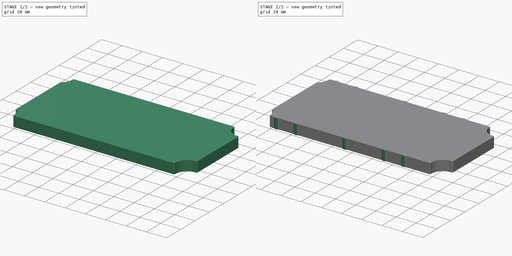
[diagram: build sequence overview — one tinted view per stage of 2, left to right]
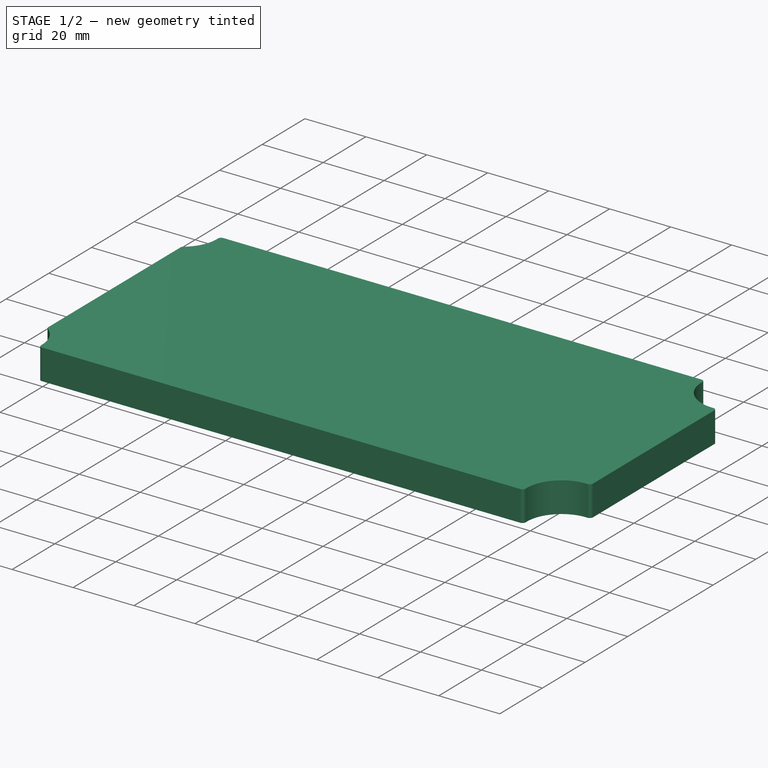
[diagram: stage 1 of 2 — iso view after this stage's code; geometry added in this stage tinted green]
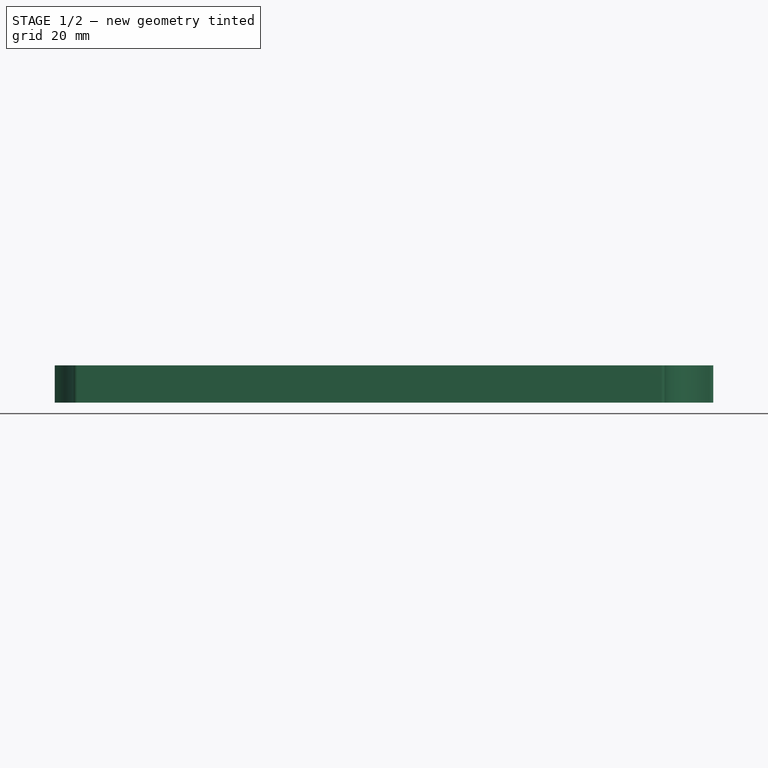
[diagram: stage 1 of 2 — front view after this stage's code; geometry added in this stage tinted green]
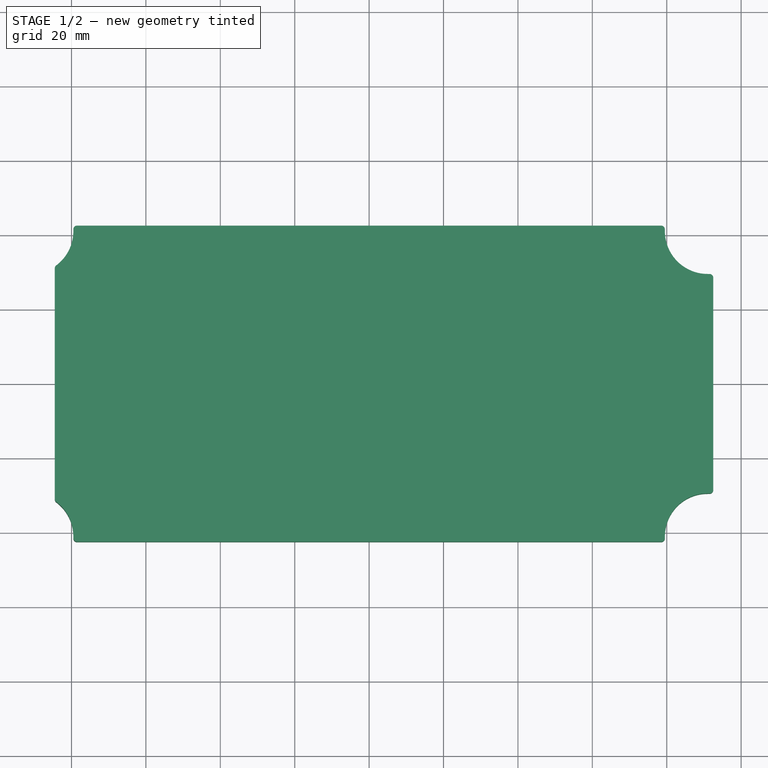
[diagram: stage 1 of 2 — top view after this stage's code; geometry added in this stage tinted green]
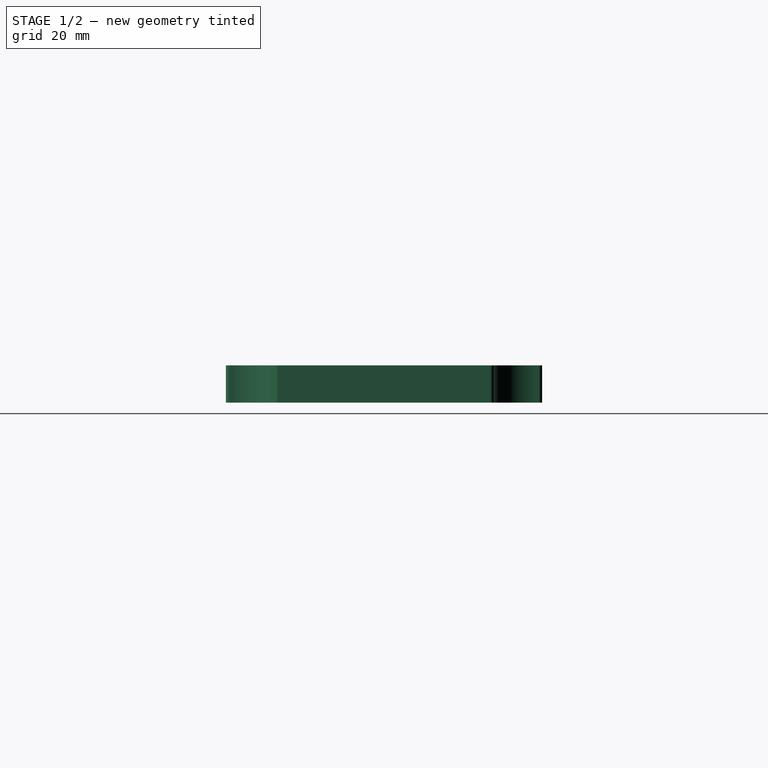
[diagram: stage 1 of 2 — right view after this stage's code; geometry added in this stage tinted green]
FCSTD DOCUMENT  (FreeCAD 1.0R39319 (Git))
Label: solar-battery-boarder
License: All rights reserved
LicenseURL: https://en.wikipedia.org/wiki/All_rights_reserved
objects: Sketcher::SketchObject×2, PartDesign::Pad×2, PartDesign::Fillet×2, PartDesign::Body×2, App::Part×2, Part::Part2DObjectPython×1
note: 19 computed .brp shape members not serialized (recipe doc carries the construction recipe); baked Part::Feature solids carry a one-line shape summary decoded from their .brp

FEATURE [PartDesign::Body] Body
  AllowCompound = false
  Group = -> [Sketch,Pad,Fillet]
  Origin = -> Origin001
  Tip = -> Fillet
FEATURE [App::Part] Part
  Group = -> [Body]
  Origin = -> Origin
FEATURE [Part::Part2DObjectPython] Shape2DView  # Draft 2D object (typed FeaturePython)
  AutoUpdate = true
  Base = -> Fillet
  Clip = false
  FaceNumbers = [4]
  FuseArch = false
  HiddenLines = false
  InPlace = true
  OnlySolids = false
  Projection = (0,0,1)
  ProjectionMode = 0
  SegmentLength = 0.05
  Tessellation = false
  VisibleOnly = false
FEATURE [Sketcher::SketchObject] Sketch001
  ArcFitTolerance = 1e-06
  AttachmentSupport = -> [XY_Plane003]
  FullyConstrained = true
  MakeInternals = false
  MapMode = 5
  sketch-geometry (28):
    g0: LineSegment [constr] StartX=-94.5 StartY=29.5 StartZ=0 EndX=-91 EndY=29.5 EndZ=0
    g1: LineSegment [constr] StartX=-79.5 StartY=44.5 StartZ=0 EndX=-79.5 EndY=41 EndZ=0
    g2: ArcOfCircle [constr] CenterX=-91 CenterY=41 CenterZ=0 NormalX=0 NormalY=0 NormalZ=1 AngleXU=0 Radius=11.5 StartAngle=4.71239 EndAngle=6.28319
    g3: LineSegment [constr] StartX=94.5 StartY=29.5 StartZ=0 EndX=91 EndY=29.5 EndZ=0
    g4: LineSegment [constr] StartX=79.5 StartY=44.5 StartZ=0 EndX=79.5 EndY=41 EndZ=0
    g5: ArcOfCircle CenterX=91 CenterY=41 CenterZ=0 NormalX=0 NormalY=0 NormalZ=1 AngleXU=0 Radius=11.5 StartAngle=3.14159 EndAngle=4.71239
    g6: LineSegment [constr] StartX=-94.5 StartY=-29.5 StartZ=0 EndX=-91 EndY=-29.5 EndZ=0
    g7: LineSegment [constr] StartX=-79.5 StartY=-44.5 StartZ=0 EndX=-79.5 EndY=-41 EndZ=0
    g8: ArcOfCircle [constr] CenterX=-91 CenterY=-41 CenterZ=0 NormalX=0 NormalY=0 NormalZ=1 AngleXU=0 Radius=11.5 StartAngle=2e-16 EndAngle=1.5708
    g9: LineSegment [constr] StartX=94.5 StartY=-29.5 StartZ=0 EndX=91 EndY=-29.5 EndZ=0
    g10: LineSegment [constr] StartX=79.5 StartY=-44.5 StartZ=0 EndX=79.5 EndY=-41 EndZ=0
    g11: ArcOfCircle CenterX=91 CenterY=-41 CenterZ=0 NormalX=0 NormalY=0 NormalZ=1 AngleXU=0 Radius=11.5 StartAngle=1.5708 EndAngle=3.14159
    g12: LineSegment [constr] StartX=-94.5 StartY=-29.5 StartZ=0 EndX=-94.5 EndY=29.5 EndZ=0
    g13: LineSegment [constr] StartX=94.5 StartY=29.5 StartZ=0 EndX=94.5 EndY=-29.5 EndZ=0
    g14: LineSegment [constr] StartX=-79.5 StartY=-44.5 StartZ=0 EndX=79.5 EndY=-44.5 EndZ=0
    g15: LineSegment [constr] StartX=-79.5 StartY=44.5 StartZ=0 EndX=79.5 EndY=44.5 EndZ=0
    g16: LineSegment StartX=79.5 StartY=-42.5 StartZ=0 EndX=-79.5 EndY=-42.5 EndZ=0
    g17: LineSegment StartX=-84.5 StartY=31.5132 StartZ=0 EndX=-84.5 EndY=-31.5132 EndZ=0
    g18: LineSegment StartX=-79.5 StartY=42.5 StartZ=0 EndX=79.5 EndY=42.5 EndZ=0
    g19: LineSegment StartX=92.5 StartY=29.5 StartZ=0 EndX=92.5 EndY=-29.5 EndZ=0
    g20: ArcOfCircle CenterX=-91 CenterY=41 CenterZ=0 NormalX=0 NormalY=0 NormalZ=1 AngleXU=0 Radius=11.5 StartAngle=5.31309 EndAngle=6.28319
    g21: LineSegment StartX=-79.5 StartY=41 StartZ=0 EndX=-79.5 EndY=42.5 EndZ=0
    g22: LineSegment StartX=91 StartY=29.5 StartZ=0 EndX=92.5 EndY=29.5 EndZ=0
    g23: LineSegment StartX=79.5 StartY=42.5 StartZ=0 EndX=79.5 EndY=41 EndZ=0
    g24: LineSegment StartX=91 StartY=-29.5 StartZ=0 EndX=92.5 EndY=-29.5 EndZ=0
    g25: LineSegment StartX=79.5 StartY=-41 StartZ=0 EndX=79.5 EndY=-42.5 EndZ=0
    g26: LineSegment StartX=-79.5 StartY=-41 StartZ=0 EndX=-79.5 EndY=-42.5 EndZ=0
    g27: ArcOfCircle CenterX=-91 CenterY=-41 CenterZ=0 NormalX=0 NormalY=0 NormalZ=1 AngleXU=0 Radius=11.5 StartAngle=0 EndAngle=0.9701
  constraints (73):
    c: Horizontal(g0)
    c: Vertical(g1)
    c: Equal(g1,g0)
    c: Tangent(g2,g1) = 1.5708
    c: DistanceY(g-1,g2) = 41
    c: Radius(g2) = 11.5
    c: DistanceX(g0,g0) = 3.5
    c: Tangent(g2,g0) = -1.5708
    c: Horizontal(g3)
    c: Vertical(g4)
    c: Equal(g4,g3)
    c: Tangent(g5,g4) = -1.5708
    c: Radius(g5) = 11.5
    c: Tangent(g5,g3) = 1.5708
    c: DistanceX(g2,g5) = 182
    c: Symmetric(g2,g5,g-2)
    c: Horizontal(g6)
    c: Vertical(g7)
    c: Equal(g7,g6)
    c: Tangent(g8,g7) = -1.5708
    c: Radius(g8) = 11.5
    c: Tangent(g8,g6) = 1.5708
    c: Horizontal(g9)
    c: Vertical(g10)
    c: Equal(g10,g9)
    c: Tangent(g11,g10) = 1.5708
    c: Radius(g11) = 11.5
    c: Tangent(g11,g9) = -1.5708
    c: Coincident(g12,g6)
    c: Coincident(g12,g0)
    c: Vertical(g12)
    c: Coincident(g13,g3)
    c: Coincident(g13,g9)
    c: Vertical(g13)
    c: Coincident(g14,g7)
    c: Coincident(g14,g10)
    c: Horizontal(g14)
    c: Coincident(g15,g1)
    c: Coincident(g15,g4)
    c: Horizontal(g15)
    c: Symmetric(g8,g2,g-1)
    c: Vertical(g11,g5)
    c: PointOnObject(g16,g10)
    c: Horizontal(g16)
    c: PointOnObject(g16,g7)
    c: PointOnObject(g17,g2)
    c: Vertical(g17)
    c: PointOnObject(g18,g4)
    c: Horizontal(g18)
    c: PointOnObject(g19,g3)
    c: PointOnObject(g19,g9)
    c: Vertical(g19)
    c: Coincident(g21,g18)
    c: Coincident(g24,g9)
    c: Coincident(g24,g19)
    c: Coincident(g26,g7)
    c: Coincident(g26,g16)
    c: Symmetric(g16,g18,g-1)
    c: Coincident(g23,g18)
    c: DistanceY(g16,g18) = 85
    c: DistanceX(g17,g-1) = 84.5
    c: Coincident(g25,g16)
    c: DistanceX(g-1,g19) = 92.5
    c: Coincident(g23,g4)
    c: Coincident(g22,g19)
    c: Coincident(g25,g10)
    c: Coincident(g22,g3)
    c: Coincident(g20,g17)
    c: Tangent(g21,g20) = -1.5708
    c: Coincident(g20,g1)
    c: Coincident(g27,g17)
    c: Coincident(g8,g27)
    c: Coincident(g27,g7)
FEATURE [PartDesign::Pad] Pad001
  Direction = (0,0,1)
  Length = 10
  Length2 = 10
  Profile = -> Sketch001
  ReferenceAxis = -> Sketch001 [N_Axis]
  Refine = true
  Suppressed = false
  Type = 0
FEATURE [PartDesign::Fillet] Fillet001
  Base = -> Pad001 [Edge38,Edge32,Edge29,Edge20,Edge1,Edge5,Edge8,Edge17]
  BaseFeature = -> Pad001
  Radius = 1
  Refine = true
  SupportTransform = false
  Suppressed = false
  UseAllEdges = false
FEATURE [PartDesign::Body] Body001
  AllowCompound = false
  Group = -> [Sketch001,Pad001,Fillet001]
  Origin = -> Origin003
  Tip = -> Fillet001
FEATURE [App::Part] Part001  label="pcb"
  Group = -> [Body001]
  Origin = -> Origin002
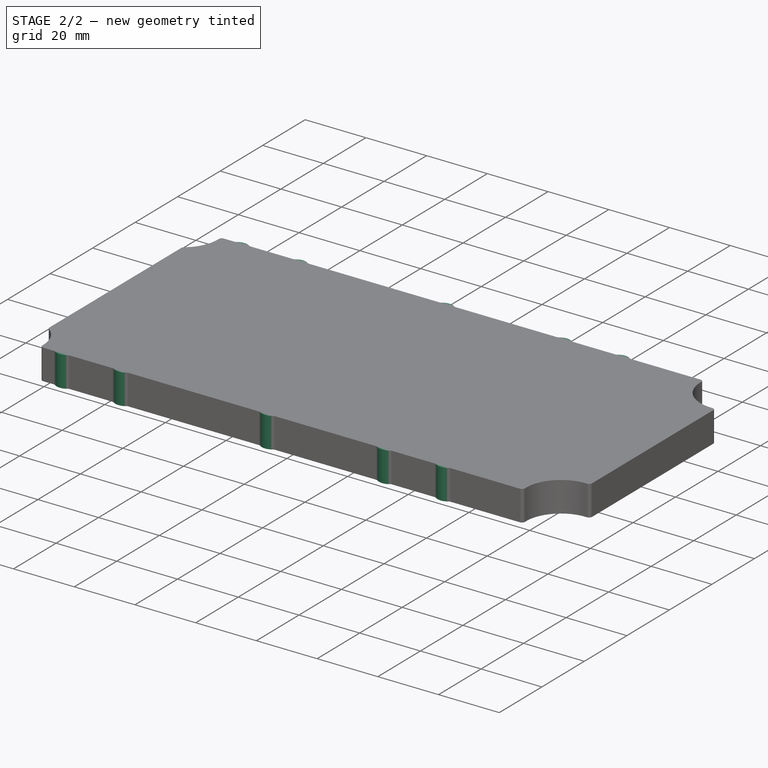
[diagram: stage 2 of 2 — iso view after this stage's code; geometry added in this stage tinted green]
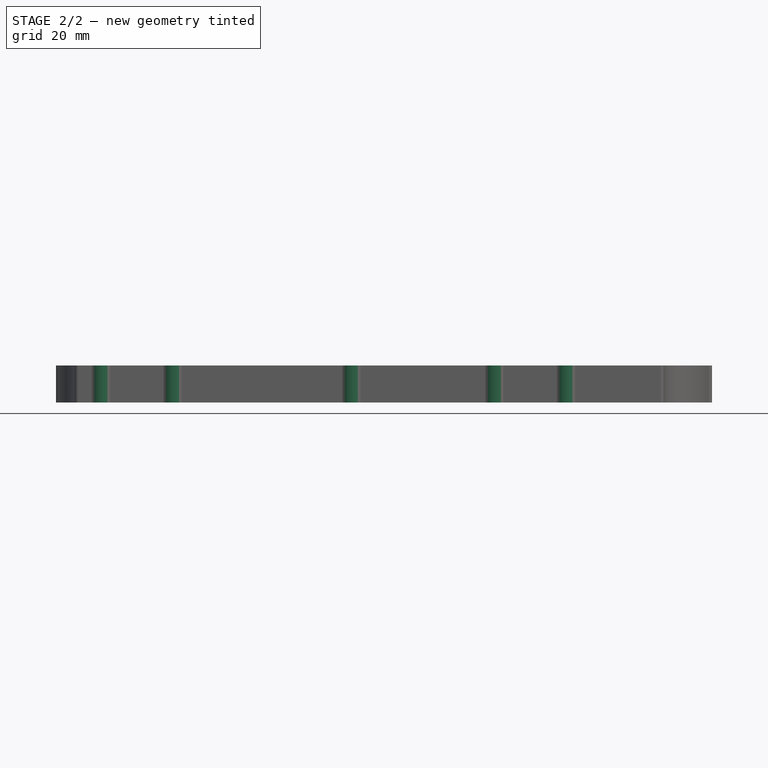
[diagram: stage 2 of 2 — front view after this stage's code; geometry added in this stage tinted green]
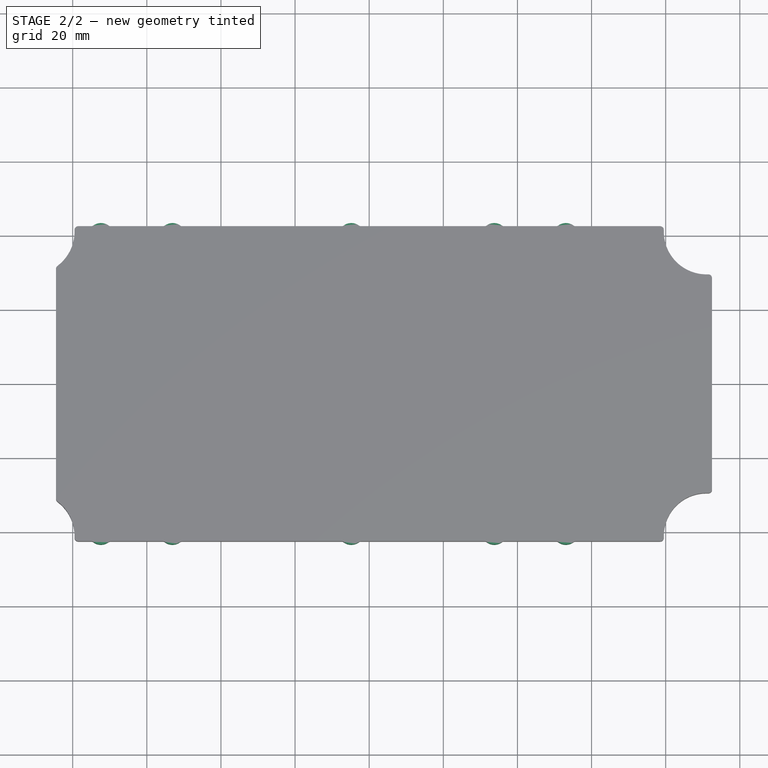
[diagram: stage 2 of 2 — top view after this stage's code; geometry added in this stage tinted green]
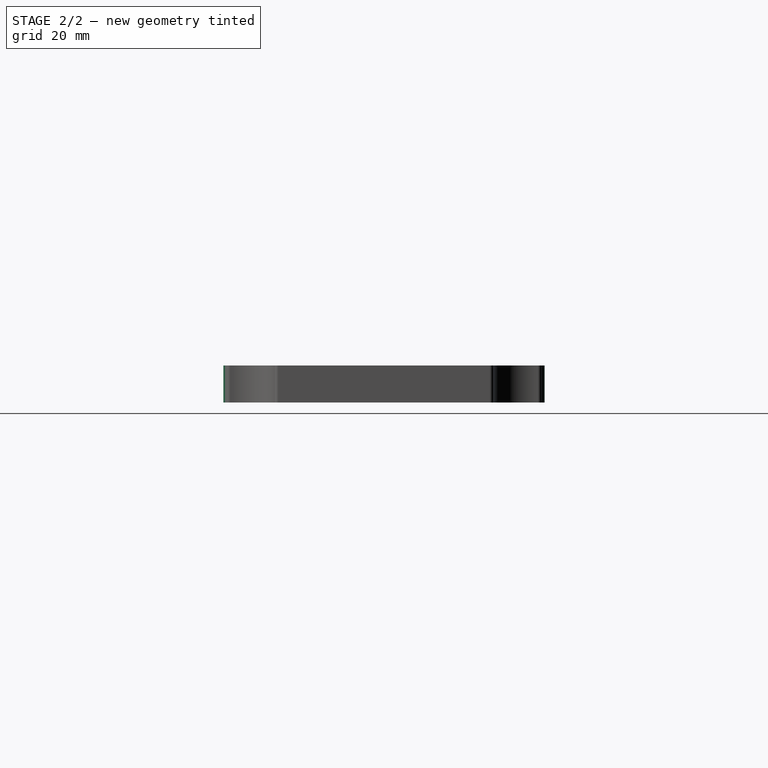
[diagram: stage 2 of 2 — right view after this stage's code; geometry added in this stage tinted green]
FEATURE [Sketcher::SketchObject] Sketch
  ArcFitTolerance = 1e-06
  AttachmentSupport = -> [XY_Plane001]
  FullyConstrained = true
  MakeInternals = false
  MapMode = 5
  sketch-geometry (50):
    g0: LineSegment [constr] StartX=-94.5 StartY=29.5 StartZ=0 EndX=-91 EndY=29.5 EndZ=0
    g1: LineSegment [constr] StartX=-79.5 StartY=44.5 StartZ=0 EndX=-79.5 EndY=41 EndZ=0
    g2: ArcOfCircle [constr] CenterX=-91 CenterY=41 CenterZ=0 NormalX=0 NormalY=0 NormalZ=1 AngleXU=0 Radius=11.5 StartAngle=4.71239 EndAngle=6.28319
    g3: LineSegment [constr] StartX=94.5 StartY=29.5 StartZ=0 EndX=91 EndY=29.5 EndZ=0
    g4: LineSegment [constr] StartX=79.5 StartY=44.5 StartZ=0 EndX=79.5 EndY=41 EndZ=0
    g5: ArcOfCircle CenterX=91 CenterY=41 CenterZ=0 NormalX=0 NormalY=0 NormalZ=1 AngleXU=0 Radius=11.5 StartAngle=3.14159 EndAngle=4.71239
    g6: LineSegment [constr] StartX=-94.5 StartY=-29.5 StartZ=0 EndX=-91 EndY=-29.5 EndZ=0
    g7: LineSegment [constr] StartX=-79.5 StartY=-44.5 StartZ=0 EndX=-79.5 EndY=-41 EndZ=0
    g8: ArcOfCircle [constr] CenterX=-91 CenterY=-41 CenterZ=0 NormalX=0 NormalY=0 NormalZ=1 AngleXU=0 Radius=11.5 StartAngle=3e-16 EndAngle=1.5708
    g9: LineSegment [constr] StartX=94.5 StartY=-29.5 StartZ=0 EndX=91 EndY=-29.5 EndZ=0
    g10: LineSegment [constr] StartX=79.5 StartY=-44.5 StartZ=0 EndX=79.5 EndY=-41 EndZ=0
    g11: ArcOfCircle CenterX=91 CenterY=-41 CenterZ=0 NormalX=0 NormalY=0 NormalZ=1 AngleXU=0 Radius=11.5 StartAngle=1.5708 EndAngle=3.14159
    g12: LineSegment [constr] StartX=-94.5 StartY=-29.5 StartZ=0 EndX=-94.5 EndY=29.5 EndZ=0
    g13: LineSegment [constr] StartX=94.5 StartY=29.5 StartZ=0 EndX=94.5 EndY=-29.5 EndZ=0
    g14: LineSegment [constr] StartX=-79.5 StartY=-44.5 StartZ=0 EndX=79.5 EndY=-44.5 EndZ=0
    g15: LineSegment [constr] StartX=-79.5 StartY=44.5 StartZ=0 EndX=79.5 EndY=44.5 EndZ=0
    g16: LineSegment [constr] StartX=79.5 StartY=-42.5 StartZ=0 EndX=-79.5 EndY=-42.5 EndZ=0
    g17: LineSegment StartX=-84.5 StartY=31.5132 StartZ=0 EndX=-84.5 EndY=-31.5132 EndZ=0
    g18: LineSegment [constr] StartX=-79.5 StartY=42.5 StartZ=0 EndX=79.5 EndY=42.5 EndZ=0
    g19: LineSegment StartX=92.5 StartY=29.5 StartZ=0 EndX=92.5 EndY=-29.5 EndZ=0
    g20: ArcOfCircle CenterX=-91 CenterY=41 CenterZ=0 NormalX=0 NormalY=0 NormalZ=1 AngleXU=0 Radius=11.5 StartAngle=5.31309 EndAngle=6.28319
    g21: LineSegment StartX=-79.5 StartY=41 StartZ=0 EndX=-79.5 EndY=42.5 EndZ=0
    g22: LineSegment StartX=91 StartY=29.5 StartZ=0 EndX=92.5 EndY=29.5 EndZ=0
    g23: LineSegment StartX=79.5 StartY=42.5 StartZ=0 EndX=79.5 EndY=41 EndZ=0
    g24: LineSegment StartX=91 StartY=-29.5 StartZ=0 EndX=92.5 EndY=-29.5 EndZ=0
    g25: LineSegment StartX=79.5 StartY=-41 StartZ=0 EndX=79.5 EndY=-42.5 EndZ=0
    g26: LineSegment StartX=-79.5 StartY=-41 StartZ=0 EndX=-79.5 EndY=-42.5 EndZ=0
    g27: ArcOfCircle CenterX=-91 CenterY=-41 CenterZ=0 NormalX=0 NormalY=0 NormalZ=1 AngleXU=0 Radius=11.5 StartAngle=3e-16 EndAngle=0.9701
    g28: ArcOfCircle CenterX=-72.375 CenterY=39.85 CenterZ=0 NormalX=0 NormalY=0 NormalZ=1 AngleXU=0 Radius=3.5 StartAngle=0.858928 EndAngle=2.28266
    g29: LineSegment StartX=-79.5 StartY=42.5 StartZ=0 EndX=-74.6614 EndY=42.5 EndZ=0
    g30: ArcOfCircle CenterX=-53.075 CenterY=39.85 CenterZ=0 NormalX=0 NormalY=0 NormalZ=1 AngleXU=0 Radius=3.5 StartAngle=0.858928 EndAngle=2.28266
    g31: ArcOfCircle CenterX=33.775 CenterY=39.85 CenterZ=0 NormalX=0 NormalY=0 NormalZ=1 AngleXU=0 Radius=3.5 StartAngle=0.858928 EndAngle=2.28266
    g32: ArcOfCircle CenterX=53.075 CenterY=39.85 CenterZ=0 NormalX=0 NormalY=0 NormalZ=1 AngleXU=0 Radius=3.5 StartAngle=0.858928 EndAngle=2.28266
    g33: LineSegment StartX=-70.0886 StartY=42.5 StartZ=0 EndX=-55.3614 EndY=42.5 EndZ=0
    g34: LineSegment StartX=36.0614 StartY=42.5 StartZ=0 EndX=50.7886 EndY=42.5 EndZ=0
    g35: LineSegment StartX=55.3614 StartY=42.5 StartZ=0 EndX=79.5 EndY=42.5 EndZ=0
    g36: ArcOfCircle CenterX=-4.825 CenterY=39.85 CenterZ=0 NormalX=0 NormalY=0 NormalZ=1 AngleXU=0 Radius=3.5 StartAngle=0.858928 EndAngle=2.28266
    g37: LineSegment StartX=-50.7886 StartY=42.5 StartZ=0 EndX=-7.11137 EndY=42.5 EndZ=0
    g38: LineSegment StartX=-2.53863 StartY=42.5 StartZ=0 EndX=31.4886 EndY=42.5 EndZ=0
    g39: ArcOfCircle CenterX=-72.375 CenterY=-39.85 CenterZ=0 NormalX=0 NormalY=0 NormalZ=1 AngleXU=0 Radius=3.5 StartAngle=4.00052 EndAngle=5.42426
    g40: ArcOfCircle CenterX=-53.075 CenterY=-39.85 CenterZ=0 NormalX=0 NormalY=0 NormalZ=1 AngleXU=0 Radius=3.5 StartAngle=4.00052 EndAngle=5.42426
    g41: ArcOfCircle CenterX=-4.825 CenterY=-39.85 CenterZ=0 NormalX=0 NormalY=0 NormalZ=1 AngleXU=0 Radius=3.5 StartAngle=4.00052 EndAngle=5.42426
    g42: ArcOfCircle CenterX=33.775 CenterY=-39.85 CenterZ=0 NormalX=0 NormalY=0 NormalZ=1 AngleXU=0 Radius=3.5 StartAngle=4.00052 EndAngle=5.42426
    g43: ArcOfCircle CenterX=53.075 CenterY=-39.85 CenterZ=0 NormalX=0 NormalY=0 NormalZ=1 AngleXU=0 Radius=3.5 StartAngle=4.00052 EndAngle=5.42426
    g44: LineSegment StartX=79.5 StartY=-42.5 StartZ=0 EndX=55.3614 EndY=-42.5 EndZ=0
    g45: LineSegment StartX=50.7886 StartY=-42.5 StartZ=0 EndX=36.0614 EndY=-42.5 EndZ=0
    g46: LineSegment StartX=31.4886 StartY=-42.5 StartZ=0 EndX=-2.53863 EndY=-42.5 EndZ=0
    g47: LineSegment StartX=-7.11137 StartY=-42.5 StartZ=0 EndX=-50.7886 EndY=-42.5 EndZ=0
    g48: LineSegment StartX=-55.3614 StartY=-42.5 StartZ=0 EndX=-70.0886 EndY=-42.5 EndZ=0
    g49: LineSegment StartX=-79.5 StartY=-42.5 StartZ=0 EndX=-74.6614 EndY=-42.5 EndZ=0
  constraints (142):
    c: Horizontal(g0)
    c: Vertical(g1)
    c: Equal(g1,g0)
    c: Tangent(g2,g1) = 1.5708
    c: DistanceY(g-1,g2) = 41
    c: Radius(g2) = 11.5
    c: DistanceX(g0,g0) = 3.5
    c: Tangent(g2,g0) = -1.5708
    c: Horizontal(g3)
    c: Vertical(g4)
    c: Equal(g4,g3)
    c: Tangent(g5,g4) = -1.5708
    c: Radius(g5) = 11.5
    c: Tangent(g5,g3) = 1.5708
    c: DistanceX(g2,g5) = 182
    c: Symmetric(g2,g5,g-2)
    c: Horizontal(g6)
    c: Vertical(g7)
    c: Equal(g7,g6)
    c: Tangent(g8,g7) = -1.5708
    c: Radius(g8) = 11.5
    c: Tangent(g8,g6) = 1.5708
    c: Horizontal(g9)
    c: Vertical(g10)
    c: Equal(g10,g9)
    c: Tangent(g11,g10) = 1.5708
    c: Radius(g11) = 11.5
    c: Tangent(g11,g9) = -1.5708
    c: Coincident(g12,g6)
    c: Coincident(g12,g0)
    c: Vertical(g12)
    c: Coincident(g13,g3)
    c: Coincident(g13,g9)
    c: Vertical(g13)
    c: Coincident(g14,g7)
    c: Coincident(g14,g10)
    c: Horizontal(g14)
    c: Coincident(g15,g1)
    c: Coincident(g15,g4)
    c: Horizontal(g15)
    c: Symmetric(g8,g2,g-1)
    c: Vertical(g11,g5)
    c: PointOnObject(g16,g10)
    c: Horizontal(g16)
    c: PointOnObject(g16,g7)
    c: PointOnObject(g17,g2)
    c: Vertical(g17)
    c: PointOnObject(g18,g4)
    c: Horizontal(g18)
    c: PointOnObject(g19,g3)
    c: PointOnObject(g19,g9)
    c: Vertical(g19)
    c: Coincident(g21,g18)
    c: Coincident(g24,g9)
    c: Coincident(g24,g19)
    c: Coincident(g26,g7)
    c: Coincident(g26,g16)
    c: Symmetric(g16,g18,g-1)
    c: Coincident(g23,g18)
    c: DistanceY(g16,g18) = 85
    c: DistanceX(g17,g-1) = 84.5
    c: Coincident(g25,g16)
    c: DistanceX(g-1,g19) = 92.5
    c: Coincident(g23,g4)
    c: Coincident(g22,g19)
    c: Coincident(g25,g10)
    c: Coincident(g22,g3)
    c: Coincident(g20,g17)
    c: Tangent(g21,g20) = -1.5708
    c: Coincident(g20,g1)
    c: Coincident(g27,g17)
    c: Coincident(g8,g27)
    c: Coincident(g27,g7)
    c: PointOnObject(g28,g18)
    c: PointOnObject(g28,g18)
    c: Coincident(g29,g18)
    c: Coincident(g29,g28)
    c: Radius(g28) = 3.5
    c: DistanceX(g28) = -72.375
    c: DistanceY(g28) = 39.85
    c: PointOnObject(g30,g18)
    c: PointOnObject(g30,g18)
    c: Horizontal(g28,g30)
    c: Equal(g30,g28)
    c: PointOnObject(g31,g18)
    c: PointOnObject(g31,g18)
    c: Equal(g31,g30)
    c: Horizontal(g31,g30)
    c: DistanceX(g28,g30) = 19.3
    c: PointOnObject(g32,g18)
    c: PointOnObject(g32,g18)
    c: Horizontal(g31,g32)
    c: Equal(g32,g31)
    c: Coincident(g33,g28)
    c: Coincident(g33,g30)
    c: Coincident(g34,g31)
    c: Coincident(g34,g32)
    c: Coincident(g35,g32)
    c: Coincident(g35,g18)
    c: Horizontal(g30,g36)
    c: Coincident(g37,g30)
    c: Coincident(g37,g36)
    c: Horizontal(g37)
    c: Coincident(g38,g36)
    c: Coincident(g38,g31)
    c: Horizontal(g38)
    c: DistanceX(g36) = -4.825
    c: Equal(g30,g36)
    c: DistanceX(g36,g31) = 38.6
    c: DistanceX(g31,g32) = 19.3
    c: PointOnObject(g39,g16)
    c: PointOnObject(g39,g16)
    c: Symmetric(g39,g28,g-1)
    c: Equal(g39,g28)
    c: PointOnObject(g40,g16)
    c: PointOnObject(g40,g16)
    c: Symmetric(g40,g30,g-1)
    c: Equal(g40,g30)
    c: PointOnObject(g41,g16)
    c: PointOnObject(g41,g16)
    c: Symmetric(g41,g36,g-1)
    c: Equal(g41,g40)
    c: PointOnObject(g42,g16)
    c: PointOnObject(g42,g16)
    c: PointOnObject(g43,g16)
    c: PointOnObject(g43,g16)
    c: Symmetric(g42,g31,g-1)
    c: Symmetric(g43,g32,g-1)
    c: Equal(g41,g42)
    c: Equal(g42,g43)
    c: Coincident(g44,g16)
    c: Coincident(g44,g43)
    c: Coincident(g45,g43)
    c: Coincident(g45,g42)
    c: Coincident(g46,g42)
    c: Coincident(g46,g41)
    c: Coincident(g47,g41)
    c: Coincident(g47,g40)
    c: Coincident(g48,g40)
    c: Coincident(g48,g39)
    c: Coincident(g49,g16)
    c: Coincident(g49,g39)
FEATURE [PartDesign::Pad] Pad
  Direction = (0,0,1)
  Length = 10
  Length2 = 10
  Profile = -> Sketch
  ReferenceAxis = -> Sketch [N_Axis]
  Refine = true
  Suppressed = false
  Type = 0
FEATURE [PartDesign::Fillet] Fillet
  Base = -> Pad [Edge62,Edge56,Edge23,Edge14,Edge65,Edge71,Edge2,Edge11,Edge74,Edge77,Edge80,Edge83,Edge86,Edge89,Edge92,Edge95,Edge98,Edge1,Edge53,Edge50,Edge47,Edge44,Edge41,Edge38,Edge35,Edge32,Edge29,Edge26]
  BaseFeature = -> Pad
  Radius = 1
  Refine = true
  SupportTransform = false
  Suppressed = false
  UseAllEdges = false
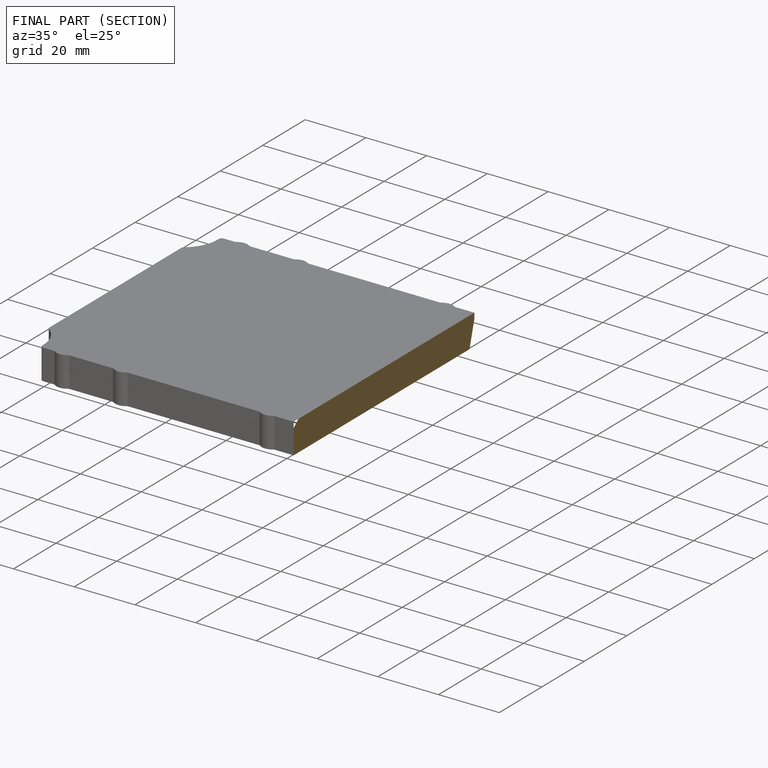
[diagram: finished part — half-section view (interior)]
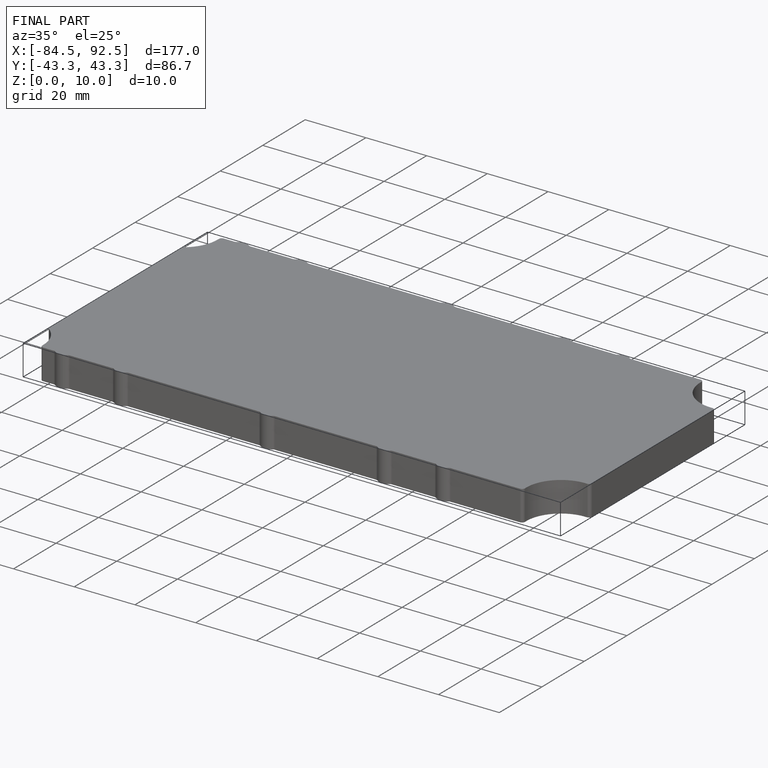
[diagram: finished part — iso view with bounding-box wireframe]
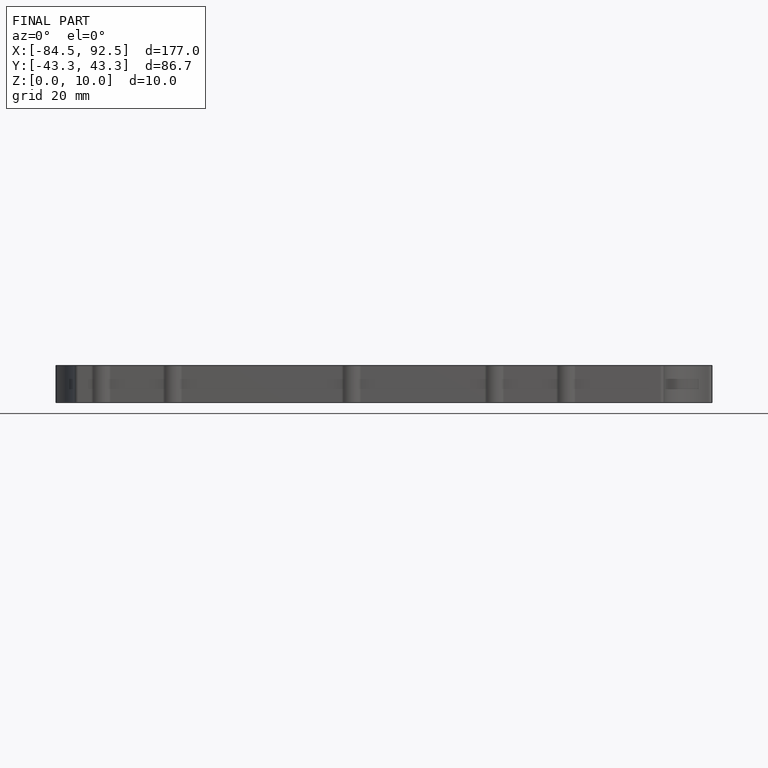
[diagram: finished part — front view with bounding-box wireframe]
